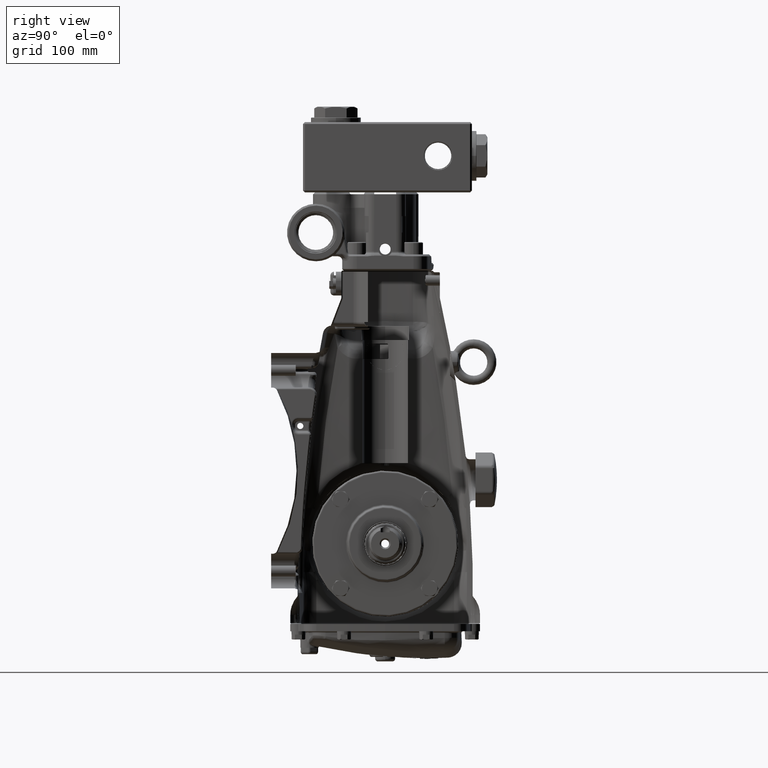
[diagram: clean part render]
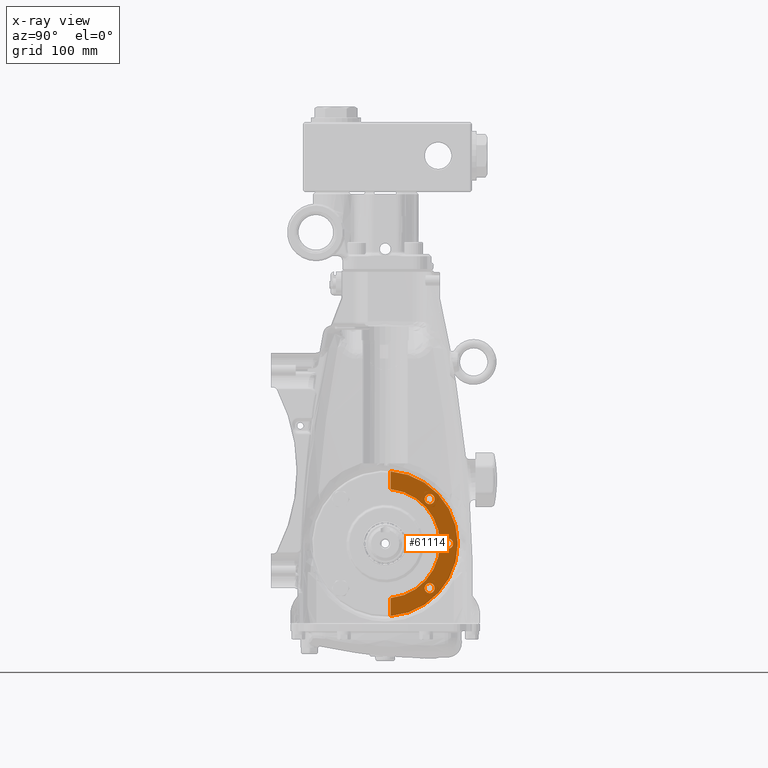
[diagram: x-ray — body ghosted, one internal face saturated and labeled with its STEP entity id]
A machine part, right view, then the same camera in x-ray: the body is ghosted and one INTERNAL B-rep face — a face not visible from any outside direction — is saturated and labeled: STEP entity #61114.
In plain terms, the highlighted planar face has unit normal (-1, -0, 0).
Its self-contained STEP definition (entity closure, byte-faithful):
#3837 = EDGE_LOOP ( 'NONE', ( #98893, #11097 ) ) ;
#4148 = AXIS2_PLACEMENT_3D ( 'NONE', #31161, #66343, #101654 ) ;
#4886 = CIRCLE ( 'NONE', #69353, 2.362204724409449064 ) ;
#6396 = ORIENTED_EDGE ( 'NONE', *, *, #109181, .T. ) ;
#7027 = CARTESIAN_POINT ( 'NONE',  ( -4.921259842519686067, 0.2362204724409575907, 2.350364024661306228 ) ) ;
#7747 = DIRECTION ( 'NONE',  ( 0.0000000000000000000, 1.000000000000000000, -5.046468293750713771E-15 ) ) ;
#10328 = CARTESIAN_POINT ( 'NONE',  ( -4.921259842519686067, 8.794565639486060856E-17, 3.843505302314713897E-16 ) ) ;
#11097 = ORIENTED_EDGE ( 'NONE', *, *, #95935, .F. ) ;
#11711 = DIRECTION ( 'NONE',  ( 1.392087464881032879E-17, -1.000000000000000000, 5.273559366969492778E-15 ) ) ;
#13824 = EDGE_CURVE ( 'NONE', #48348, #70061, #53879, .T. ) ;
#13912 = CARTESIAN_POINT ( 'NONE',  ( -4.921259842519686067, 0.2362204724409616707, 3.120994550013498792 ) ) ;
#15647 = AXIS2_PLACEMENT_3D ( 'NONE', #23489, #58650, #93981 ) ;
#17642 = EDGE_CURVE ( 'NONE', #89057, #33694, #65382, .T. ) ;
#20136 = CARTESIAN_POINT ( 'NONE',  ( -4.921259842519686067, 1.704345192987085422, -1.920880626057936524 ) ) ;
#20365 = PLANE ( 'NONE',  #101525 ) ;
#20439 = CARTESIAN_POINT ( 'NONE',  ( -4.921259842519686067, 0.2362204724409287526, -3.120994550013500124 ) ) ;
#20870 = ORIENTED_EDGE ( 'NONE', *, *, #13824, .F. ) ;
#23008 = DIRECTION ( 'NONE',  ( 1.000000000000000000, 1.392087464881007303E-17, -5.804576252323939882E-17 ) ) ;
#23489 = CARTESIAN_POINT ( 'NONE',  ( -4.921259842519686067, 2.716535433070867089, -1.394146034854392752E-14 ) ) ;
#26627 = EDGE_CURVE ( 'NONE', #40217, #56379, #99594, .T. ) ;
#27054 = EDGE_CURVE ( 'NONE', #33694, #89057, #99905, .T. ) ;
#28276 = DIRECTION ( 'NONE',  ( -1.000000000000000000, -1.392087464881007303E-17, 5.804576252323939882E-17 ) ) ;
#28952 = EDGE_CURVE ( 'NONE', #70061, #48348, #31827, .T. ) ;
#29031 = FACE_BOUND ( 'NONE', #65919, .T. ) ;
#30698 = CARTESIAN_POINT ( 'NONE',  ( -4.921259842519686067, 2.137416059128817380, -1.920880626057938745 ) ) ;
#30879 = EDGE_CURVE ( 'NONE', #64516, #114230, #39148, .T. ) ;
#31161 = CARTESIAN_POINT ( 'NONE',  ( -4.921259842519686067, 1.920880626057956064, 1.920880626057933416 ) ) ;
#31212 = DIRECTION ( 'NONE',  ( 0.0000000000000000000, 1.000000000000000000, -5.273559366969488045E-15 ) ) ;
#31424 = DIRECTION ( 'NONE',  ( 0.0000000000000000000, 1.000000000000000000, -5.046468293750713771E-15 ) ) ;
#31827 = CIRCLE ( 'NONE', #111179, 0.2165354330708660624 ) ;
#33694 = VERTEX_POINT ( 'NONE', #64745 ) ;
#36495 = ORIENTED_EDGE ( 'NONE', *, *, #17642, .F. ) ;
#37146 = LINE ( 'NONE', #72307, #48476 ) ;
#37149 = EDGE_CURVE ( 'NONE', #111296, #40217, #4886, .T. ) ;
#38607 = CARTESIAN_POINT ( 'NONE',  ( -4.921259842519686067, 0.2362204724409328049, -2.350364024661308449 ) ) ;
#39148 = CIRCLE ( 'NONE', #103737, 0.2165354330708660624 ) ;
#40217 = VERTEX_POINT ( 'NONE', #38607 ) ;
#43118 = AXIS2_PLACEMENT_3D ( 'NONE', #10328, #45541, #80727 ) ;
#45541 = DIRECTION ( 'NONE',  ( 1.000000000000000000, 1.392087464881007303E-17, -5.804576252323939882E-17 ) ) ;
#48348 = VERTEX_POINT ( 'NONE', #67434 ) ;
#48476 = VECTOR ( 'NONE', #107633, 39.37007874015748143 ) ;
#50035 = AXIS2_PLACEMENT_3D ( 'NONE', #75025, #110388, #31212 ) ;
#50875 = CARTESIAN_POINT ( 'NONE',  ( -4.921259842519686067, 1.704345192987090085, 1.920880626057934526 ) ) ;
#51577 = CARTESIAN_POINT ( 'NONE',  ( -4.921259842519686067, 1.920880626057951623, -1.920880626057937635 ) ) ;
#53659 = VECTOR ( 'NONE', #55605, 39.37007874015748143 ) ;
#53879 = CIRCLE ( 'NONE', #4148, 0.2165354330708660624 ) ;
#55535 = CARTESIAN_POINT ( 'NONE',  ( -4.921259842519686067, 8.794565639486060856E-17, 3.843505302314713897E-16 ) ) ;
#55605 = DIRECTION ( 'NONE',  ( -5.804576252323928789E-17, -5.273559366969492778E-15, -1.000000000000000000 ) ) ;
#56144 = EDGE_LOOP ( 'NONE', ( #73347, #93619, #6396, #66961 ) ) ;
#56379 = VERTEX_POINT ( 'NONE', #94066 ) ;
#58168 = DIRECTION ( 'NONE',  ( 0.0000000000000000000, 1.000000000000000000, -5.046468293750713771E-15 ) ) ;
#58650 = DIRECTION ( 'NONE',  ( 1.000000000000000000, 1.392087464881007303E-17, -5.804576252323939882E-17 ) ) ;
#59484 = AXIS2_PLACEMENT_3D ( 'NONE', #51577, #86869, #7747 ) ;
#61114 = ADVANCED_FACE ( 'NONE', ( #108171, #29031, #64217, #99516 ), #20365, .F. ) ;
#63466 = DIRECTION ( 'NONE',  ( 0.0000000000000000000, -1.000000000000000000, 5.273559366969492778E-15 ) ) ;
#64217 = FACE_BOUND ( 'NONE', #111787, .T. ) ;
#64516 = VERTEX_POINT ( 'NONE', #30698 ) ;
#64745 = CARTESIAN_POINT ( 'NONE',  ( -4.921259842519686067, 2.933070866141733291, -1.508337280989559020E-14 ) ) ;
#65382 = CIRCLE ( 'NONE', #15647, 0.2165354330708663400 ) ;
#65919 = EDGE_LOOP ( 'NONE', ( #98327, #36495 ) ) ;
#66343 = DIRECTION ( 'NONE',  ( 1.000000000000000000, 1.392087464881007303E-17, -5.804576252323939882E-17 ) ) ;
#66961 = ORIENTED_EDGE ( 'NONE', *, *, #96133, .T. ) ;
#67434 = CARTESIAN_POINT ( 'NONE',  ( -4.921259842519686067, 2.137416059128822265, 1.920880626057932306 ) ) ;
#69353 = AXIS2_PLACEMENT_3D ( 'NONE', #107415, #28276, #63466 ) ;
#70061 = VERTEX_POINT ( 'NONE', #50875 ) ;
#72307 = CARTESIAN_POINT ( 'NONE',  ( -4.921259842519686067, 0.2362204724409575907, 2.350364024661306228 ) ) ;
#73347 = ORIENTED_EDGE ( 'NONE', *, *, #37149, .T. ) ;
#74454 = ORIENTED_EDGE ( 'NONE', *, *, #28952, .F. ) ;
#75025 = CARTESIAN_POINT ( 'NONE',  ( -4.921259842519686067, 2.716535433070867089, -1.394146034854392752E-14 ) ) ;
#75234 = CARTESIAN_POINT ( 'NONE',  ( -4.921259842519686067, 1.920880626057951623, -1.920880626057937635 ) ) ;
#78935 = CARTESIAN_POINT ( 'NONE',  ( -4.921259842519686067, 2.500000000000000444, -1.277302994469104264E-14 ) ) ;
#80727 = DIRECTION ( 'NONE',  ( 0.0000000000000000000, 1.000000000000000000, -5.273559366969492778E-15 ) ) ;
#86869 = DIRECTION ( 'NONE',  ( 1.000000000000000000, 1.392087464881007303E-17, -5.804576252323939882E-17 ) ) ;
#87735 = VERTEX_POINT ( 'NONE', #13912 ) ;
#89057 = VERTEX_POINT ( 'NONE', #78935 ) ;
#90867 = DIRECTION ( 'NONE',  ( -1.000000000000000000, -1.392087464881002372E-17, 5.804576252323939882E-17 ) ) ;
#92940 = CIRCLE ( 'NONE', #43118, 3.129921259842520342 ) ;
#93619 = ORIENTED_EDGE ( 'NONE', *, *, #26627, .T. ) ;
#93981 = DIRECTION ( 'NONE',  ( 0.0000000000000000000, 1.000000000000000000, -5.273559366969488045E-15 ) ) ;
#94066 = CARTESIAN_POINT ( 'NONE',  ( -4.921259842519686067, 0.2362204724409278089, -3.120994550013500568 ) ) ;
#95935 = EDGE_CURVE ( 'NONE', #114230, #64516, #109362, .T. ) ;
#96133 = EDGE_CURVE ( 'NONE', #87735, #111296, #37146, .T. ) ;
#98327 = ORIENTED_EDGE ( 'NONE', *, *, #27054, .F. ) ;
#98893 = ORIENTED_EDGE ( 'NONE', *, *, #30879, .F. ) ;
#99516 = FACE_OUTER_BOUND ( 'NONE', #56144, .T. ) ;
#99594 = LINE ( 'NONE', #20439, #53659 ) ;
#99905 = CIRCLE ( 'NONE', #50035, 0.2165354330708663400 ) ;
#101525 = AXIS2_PLACEMENT_3D ( 'NONE', #55535, #90867, #11711 ) ;
#101654 = DIRECTION ( 'NONE',  ( 0.0000000000000000000, 1.000000000000000000, -5.046468293750713771E-15 ) ) ;
#102169 = CARTESIAN_POINT ( 'NONE',  ( -4.921259842519686067, 1.920880626057956064, 1.920880626057933416 ) ) ;
#103737 = AXIS2_PLACEMENT_3D ( 'NONE', #75234, #110593, #31424 ) ;
#107415 = CARTESIAN_POINT ( 'NONE',  ( -4.921259842519686067, 8.794565639486060856E-17, 3.843505302314713897E-16 ) ) ;
#107633 = DIRECTION ( 'NONE',  ( -5.804576252323928789E-17, -5.273559366969492778E-15, -1.000000000000000000 ) ) ;
#108171 = FACE_BOUND ( 'NONE', #3837, .T. ) ;
#109181 = EDGE_CURVE ( 'NONE', #56379, #87735, #92940, .T. ) ;
#109362 = CIRCLE ( 'NONE', #59484, 0.2165354330708660624 ) ;
#110388 = DIRECTION ( 'NONE',  ( 1.000000000000000000, 1.392087464881007303E-17, -5.804576252323939882E-17 ) ) ;
#110593 = DIRECTION ( 'NONE',  ( 1.000000000000000000, 1.392087464881007303E-17, -5.804576252323939882E-17 ) ) ;
#111179 = AXIS2_PLACEMENT_3D ( 'NONE', #102169, #23008, #58168 ) ;
#111296 = VERTEX_POINT ( 'NONE', #7027 ) ;
#111787 = EDGE_LOOP ( 'NONE', ( #20870, #74454 ) ) ;
#114230 = VERTEX_POINT ( 'NONE', #20136 ) ;